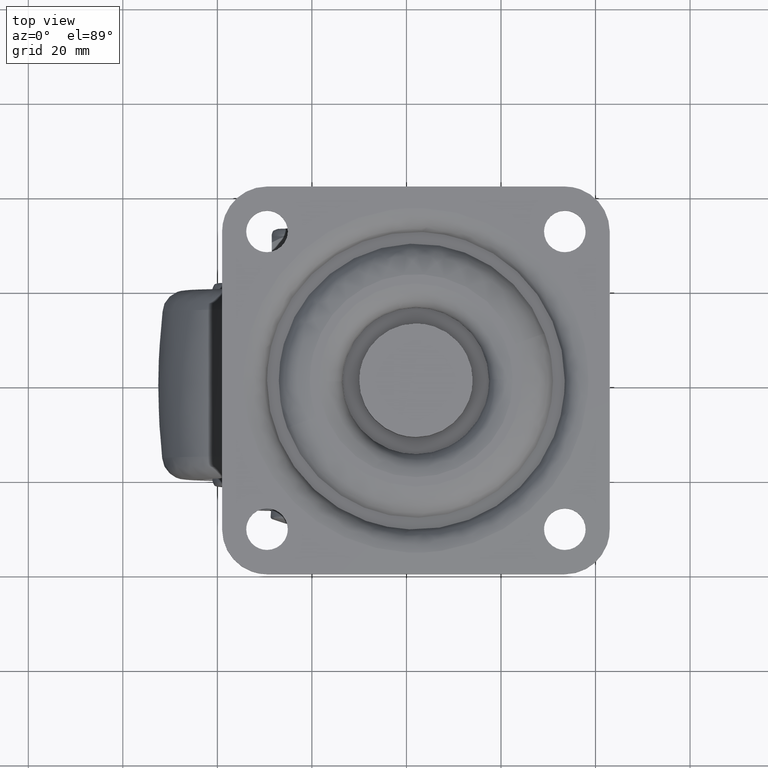
[diagram: clean part render]
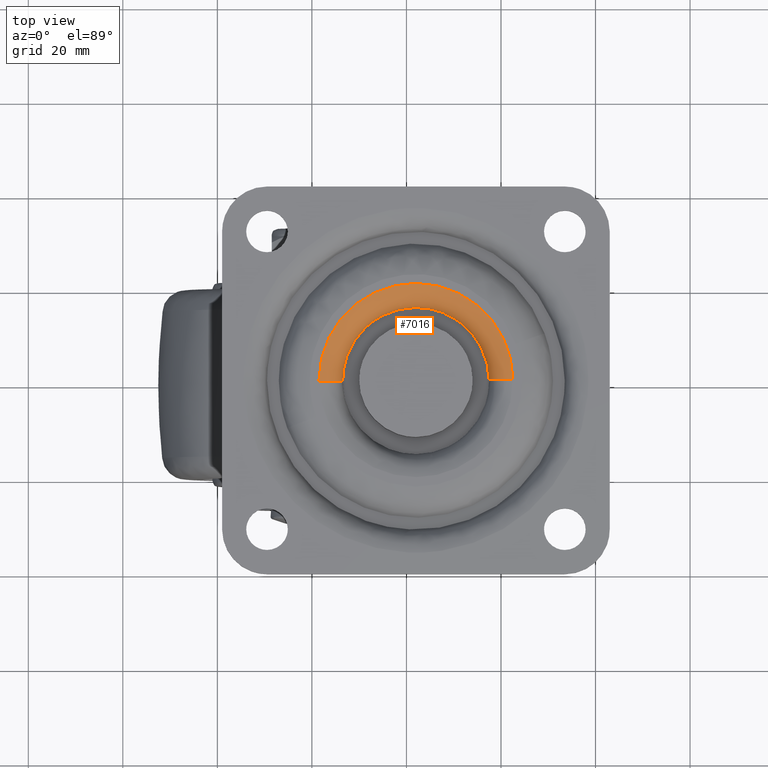
[diagram: same view with one face highlighted and labeled with its STEP entity id]
A machine part, top view. The second image highlights one B-rep face of the part: STEP entity #7016.
In plain terms, the highlighted face is a freeform B-spline surface patch.
Its self-contained STEP definition (entity closure, byte-faithful):
#6725=CARTESIAN_POINT('',(1.501618595742468,-0.257603818025101,57.500000000000000));
#6726=VERTEX_POINT('',#6725);
#6727=CARTESIAN_POINT('',(1.500000000000249,2.842171E-014,57.500000000000000));
#6728=VERTEX_POINT('',#6727);
#6729=CARTESIAN_POINT('',(1.501618595742468,-0.257603818025101,57.500000000000000));
#6730=CARTESIAN_POINT('',(1.500000000000249,2.842171E-014,57.500000000000000));
#6731=QUASI_UNIFORM_CURVE('',1,(#6729,#6730),.UNSPECIFIED.,.F.,.U.);
#6732=EDGE_CURVE('',#6726,#6728,#6731,.T.);
#6734=CARTESIAN_POINT('',(21.871262428262519,20.499595767657890,57.500000000000000));
#6735=VERTEX_POINT('',#6734);
#6736=CARTESIAN_POINT('',(1.500000000000249,2.842171E-014,57.500000000000000));
#6737=CARTESIAN_POINT('',(1.499906199968379,1.169317138835591,57.499999999999957));
#6738=CARTESIAN_POINT('',(1.657659435351596,3.006768346817889,57.499999999999972));
#6739=CARTESIAN_POINT('',(2.296386754034684,5.863018410265247,57.500000000000021));
#6740=CARTESIAN_POINT('',(3.097181874679892,8.068115368746158,57.500000000000227));
#6741=CARTESIAN_POINT('',(4.329091803113908,10.489770371914160,57.500000000000007));
#6742=CARTESIAN_POINT('',(6.006084404896178,12.996063976494590,57.499999999999673));
#6743=CARTESIAN_POINT('',(8.481965444040405,15.564906780596440,57.500000000000938));
#6744=CARTESIAN_POINT('',(11.277676091226120,17.562602187810480,57.499999999998913));
#6745=CARTESIAN_POINT('',(13.702401522638979,18.796491569058659,57.500000000001350));
#6746=CARTESIAN_POINT('',(16.211804023177141,19.725744591827951,57.499999999999041));
#6747=CARTESIAN_POINT('',(18.865428785095109,20.336664881110931,57.500000000000377));
#6748=CARTESIAN_POINT('',(20.910776011705231,20.493604045383790,57.499999999999943));
#6749=CARTESIAN_POINT('',(21.871262428262519,20.499595767657890,57.500000000000000));
#6750=B_SPLINE_CURVE_WITH_KNOTS('',3,(#6736,#6737,#6738,#6739,#6740,#6741,#6742,#6743,#6744,#6745,#6746,#6747,#6748,#6749),.UNSPECIFIED.,.F.,.U.,(4,1,1,1,1,1,1,1,1,1,1,4),(0.000000063308509,3.507935912666781,5.512477670334114,8.769865574547712,10.523848324996340,13.655957931679310,17.790274416381699,21.172934712702030,23.929192826482002,25.933744287155839,29.191117906937158,32.072636192873581),.UNSPECIFIED.);
#6751=EDGE_CURVE('',#6728,#6735,#6750,.T.);
#6753=CARTESIAN_POINT('',(42.498381404258033,0.257603818025160,57.500000000000000));
#6754=VERTEX_POINT('',#6753);
#6755=CARTESIAN_POINT('',(21.871262428262519,20.499595767657890,57.500000000000000));
#6756=CARTESIAN_POINT('',(23.040543013925848,20.507002988002011,57.500000000000057));
#6757=CARTESIAN_POINT('',(25.547506399914329,20.307818488317061,57.500000000000171));
#6758=CARTESIAN_POINT('',(28.789274919460400,19.436369568143888,57.499999999999559));
#6759=CARTESIAN_POINT('',(31.461618870519420,18.237923325660901,57.500000000000632));
#6760=CARTESIAN_POINT('',(33.437436373272988,17.059915022666459,57.499999999999041));
#6761=CARTESIAN_POINT('',(35.376200521227759,15.602604109718611,57.500000000001620));
#6762=CARTESIAN_POINT('',(37.094601406810142,13.946936059768721,57.499999999996781));
#6763=CARTESIAN_POINT('',(38.807461316412940,11.836411187080181,57.500000000001727));
#6764=CARTESIAN_POINT('',(40.172352756203921,9.627296061344079,57.499999999998977));
#6765=CARTESIAN_POINT('',(41.186545407938240,7.330920325849781,57.500000000001137));
#6766=CARTESIAN_POINT('',(41.911145374953229,5.060866157246061,57.500000000000192));
#6767=CARTESIAN_POINT('',(42.367397362431831,2.761801861608740,57.499999999996653));
#6768=CARTESIAN_POINT('',(42.488425719077100,1.050990495316557,57.500000000004881));
#6769=CARTESIAN_POINT('',(42.498381404258033,0.257603818025160,57.500000000000000));
#6770=B_SPLINE_CURVE_WITH_KNOTS('',3,(#6755,#6756,#6757,#6758,#6759,#6760,#6761,#6762,#6763,#6764,#6765,#6766,#6767,#6768,#6769),.UNSPECIFIED.,.F.,.U.,(4,1,1,1,1,1,1,1,1,1,1,1,4),(0.000000063213665,3.507921282035710,7.516990620774735,10.022658065507491,12.277779489180769,14.407605277273470,17.289045615502801,19.418871196942021,22.550969760226430,25.056644035658369,26.935907262649138,29.692150937662539,32.072502428154337),.UNSPECIFIED.);
#6771=EDGE_CURVE('',#6735,#6754,#6770,.T.);
#6849=CARTESIAN_POINT('',(37.498776185159002,0.194773618223117,52.500000000142919));
#6850=VERTEX_POINT('',#6849);
#6881=CARTESIAN_POINT('',(6.501223814841493,-0.194773618223061,52.500000000142933));
#6882=VERTEX_POINT('',#6881);
#6899=CARTESIAN_POINT('',(6.501223814841493,-0.194773618223061,52.500000000142933));
#6900=CARTESIAN_POINT('',(6.501265923053433,-0.194773089062879,52.868145844209280));
#6901=CARTESIAN_POINT('',(6.412814792539733,-0.195884657297674,53.665830183418080));
#6902=CARTESIAN_POINT('',(6.059519541336999,-0.200324530122700,54.634547269890533));
#6903=CARTESIAN_POINT('',(5.537785126748531,-0.206881183327212,55.492919124443617));
#6904=CARTESIAN_POINT('',(4.861556549933101,-0.215379369634196,56.267459378072303));
#6905=CARTESIAN_POINT('',(3.899780403483444,-0.227466041429244,56.944908503942258));
#6906=CARTESIAN_POINT('',(2.728638191044784,-0.242183823300444,57.396558599245893));
#6907=CARTESIAN_POINT('',(1.931107765258795,-0.252206413817569,57.500127143726907));
#6908=CARTESIAN_POINT('',(1.501618595742468,-0.257603818025101,57.500000000000000));
#6909=B_SPLINE_CURVE_WITH_KNOTS('',3,(#6899,#6900,#6901,#6902,#6903,#6904,#6905,#6906,#6907,#6908),.UNSPECIFIED.,.F.,.U.,(4,1,1,1,1,1,1,4),(0.000000126471452,1.104453403189432,2.393029631931603,3.067990372922898,4.111088817004185,5.461003267471872,6.565494966442980,7.854030913224137),.UNSPECIFIED.);
#6910=EDGE_CURVE('',#6882,#6726,#6909,.T.);
#6915=CARTESIAN_POINT('',(37.498776185159002,0.194773618223117,52.500000000142919));
#6916=CARTESIAN_POINT('',(37.498768708863260,0.194773524279990,52.786337472059500));
#6917=CARTESIAN_POINT('',(37.558613202396927,0.195525591983557,53.481751929905833));
#6918=CARTESIAN_POINT('',(37.905368973616334,0.199883282960467,54.625600862022829));
#6919=CARTESIAN_POINT('',(38.513710939957541,0.207528336057714,55.586303626651279));
#6920=CARTESIAN_POINT('',(39.248511668421308,0.216762600477136,56.329992107927460));
#6921=CARTESIAN_POINT('',(39.964643297843310,0.225762249719168,56.847704746379712));
#6922=CARTESIAN_POINT('',(41.066980579874119,0.239615357819055,57.352724992933922));
#6923=CARTESIAN_POINT('',(41.946138467508057,0.250663763276520,57.500368698919843));
#6924=CARTESIAN_POINT('',(42.498381404258033,0.257603818025160,57.500000000000000));
#6925=B_SPLINE_CURVE_WITH_KNOTS('',3,(#6915,#6916,#6917,#6918,#6919,#6920,#6921,#6922,#6923,#6924),.UNSPECIFIED.,.F.,.U.,(4,1,1,1,1,1,1,4),(0.000000126505962,0.859030739253578,2.086229460678656,3.558867399312371,4.233784437606239,5.215551463672838,6.197327634911657,7.854030913223915),.UNSPECIFIED.);
#6926=EDGE_CURVE('',#6850,#6754,#6925,.T.);
#6931=CARTESIAN_POINT('',(6.494571084786675,-0.628559266326631,52.152314454433771));
#6932=CARTESIAN_POINT('',(6.491862209576251,-0.413005173376916,52.152314454433771));
#6933=CARTESIAN_POINT('',(6.294195890777817,15.315952694940872,52.152314454433764));
#6934=CARTESIAN_POINT('',(21.805074292859448,15.510878402081666,52.152314454433771));
#6935=CARTESIAN_POINT('',(37.315952694941103,15.705804109222470,52.152314454433764));
#6936=CARTESIAN_POINT('',(37.513619013737269,-0.023153758915227,52.152314454433778));
#6937=CARTESIAN_POINT('',(37.516327888945476,-0.238707851689005,52.152314454433771));
#6938=CARTESIAN_POINT('',(6.894187961827945,-0.612359592495077,57.887685870088774));
#6939=CARTESIAN_POINT('',(6.891548901664741,-0.402360912035339,57.887685870088781));
#6940=CARTESIAN_POINT('',(6.698976978993391,14.921219133016711,57.887685870088767));
#6941=CARTESIAN_POINT('',(21.810098056005160,15.111121077011799,57.887685870088788));
#6942=CARTESIAN_POINT('',(36.921219133016926,15.301023021006886,57.887685870088767));
#6943=CARTESIAN_POINT('',(37.113791055686065,-0.022557023869710,57.887685870088774));
#6944=CARTESIAN_POINT('',(37.116430115847123,-0.232555704158045,57.887685870088774));
#6945=CARTESIAN_POINT('',(1.161284265671278,-0.844760112395690,57.487896817658800));
#6946=CARTESIAN_POINT('',(1.157643638844474,-0.555063484658877,57.487896817658800));
#6947=CARTESIAN_POINT('',(0.891987509612845,20.584066790770628,57.487896817658815));
#6948=CARTESIAN_POINT('',(21.738027150191840,20.846039640579033,57.487896817658807));
#6949=CARTESIAN_POINT('',(42.584066790770855,21.108012490387431,57.487896817658815));
#6950=CARTESIAN_POINT('',(42.849722919999451,-0.031117784800028,57.487896817658807));
#6951=CARTESIAN_POINT('',(42.853363546823282,-0.320814412300387,57.487896817658800));
#6959=(BOUNDED_SURFACE()B_SPLINE_SURFACE(2,2,((#6931,#6938,#6945),(#6932,#6939,#6946),(#6933,#6940,#6947),(#6934,#6941,#6948),(#6935,#6942,#6949),(#6936,#6943,#6950),(#6937,#6944,#6951)),.UNSPECIFIED.,.F.,.F.,.U.)B_SPLINE_SURFACE_WITH_KNOTS((3,1,2,1,3),(3,3),(0.0,0.690831532954838,35.232408154218362,69.773984775481878,70.464816307862876),(0.0,9.113649966391414),.UNSPECIFIED.)GEOMETRIC_REPRESENTATION_ITEM()RATIONAL_B_SPLINE_SURFACE(((0.921146729413126,0.604479481457801,0.921146741245760),(0.915813262252061,0.600979527149819,0.915813274016184),(0.643806437242182,0.422481857576905,0.643806445512228),(0.910479795090997,0.597479572841838,0.910479806786608),(0.643806437242182,0.422481857576905,0.643806445512228),(0.915813262247631,0.600979527146912,0.915813274011753),(0.921146729404265,0.604479481451986,0.921146741236899)))REPRESENTATION_ITEM('')SURFACE());
#6960=CARTESIAN_POINT('',(11.330504062690681,11.243302737351479,52.500000000026183));
#6961=VERTEX_POINT('',#6960);
#6962=CARTESIAN_POINT('',(6.500000000000249,2.842171E-014,52.500000000000000));
#6963=VERTEX_POINT('',#6962);
#6964=CARTESIAN_POINT('',(11.330504062690681,11.243302737351479,52.500000000026183));
#6965=CARTESIAN_POINT('',(10.712626257001670,10.657054631180230,52.500000000023057));
#6966=CARTESIAN_POINT('',(9.771042704417774,9.602928423805246,52.500000000018552));
#6967=CARTESIAN_POINT('',(8.634629005815720,7.915986387201096,52.500000000012427));
#6968=CARTESIAN_POINT('',(7.636773547122264,5.993492234766944,52.500000000007397));
#6969=CARTESIAN_POINT('',(6.748011148492680,3.341317016973517,52.500000000002309));
#6970=CARTESIAN_POINT('',(6.499738666456527,1.179351029885947,52.500000000000313));
#6971=CARTESIAN_POINT('',(6.500000000000249,2.842171E-014,52.500000000000000));
#6972=B_SPLINE_CURVE_WITH_KNOTS('',3,(#6964,#6965,#6966,#6967,#6968,#6969,#6970,#6971),.UNSPECIFIED.,.F.,.U.,(4,1,1,1,1,4),(0.000000019416740,2.555206537399148,4.225923888473529,6.093198310215688,9.041500712213813,12.579481635364839),.UNSPECIFIED.);
#6973=EDGE_CURVE('',#6961,#6963,#6972,.T.);
#6974=ORIENTED_EDGE('',*,*,#6973,.F.);
#6975=CARTESIAN_POINT('',(21.902690972914030,15.499694543869190,52.500000000071459));
#6976=VERTEX_POINT('',#6975);
#6977=CARTESIAN_POINT('',(21.902690972914030,15.499694543869190,52.500000000071459));
#6978=CARTESIAN_POINT('',(20.717386191861038,15.492536187671940,52.500000000066450));
#6979=CARTESIAN_POINT('',(19.016822569049982,15.285334800945851,52.500000000059117));
#6980=CARTESIAN_POINT('',(16.651880927504561,14.590665642330610,52.500000000049027));
#6981=CARTESIAN_POINT('',(14.946440448820191,13.851017816585120,52.500000000041751));
#6982=CARTESIAN_POINT('',(13.065103710816111,12.726776029107530,52.500000000033410));
#6983=CARTESIAN_POINT('',(11.947741862340830,11.829126477436800,52.500000000029260));
#6984=CARTESIAN_POINT('',(11.330504062690681,11.243302737351479,52.500000000026183));
#6985=B_SPLINE_CURVE_WITH_KNOTS('',3,(#6977,#6978,#6979,#6980,#6981,#6982,#6983,#6984),.UNSPECIFIED.,.F.,.U.,(4,1,1,1,1,4),(0.000000016097363,3.555886727617448,5.105895935041705,7.385293085315533,9.117649504820500,11.670589660466330),.UNSPECIFIED.);
#6986=EDGE_CURVE('',#6976,#6961,#6985,.T.);
#6987=ORIENTED_EDGE('',*,*,#6986,.F.);
#6988=CARTESIAN_POINT('',(37.498776185159002,0.194773618223117,52.500000000142919));
#6989=CARTESIAN_POINT('',(37.487361545157043,1.110390045646792,52.500000000142911));
#6990=CARTESIAN_POINT('',(37.336714436762342,2.592619178042881,52.500000000142123));
#6991=CARTESIAN_POINT('',(36.777249056944150,4.832300976548175,52.500000000139948));
#6992=CARTESIAN_POINT('',(36.026730680200266,6.715457310421593,52.500000000135920));
#6993=CARTESIAN_POINT('',(34.863959574974118,8.747226900879056,52.500000000131301));
#6994=CARTESIAN_POINT('',(33.531698082685040,10.441023642045600,52.500000000124921));
#6995=CARTESIAN_POINT('',(31.831086125651630,12.049742969907079,52.500000000117112));
#6996=CARTESIAN_POINT('',(30.048600679703341,13.314453486861741,52.500000000108948));
#6997=CARTESIAN_POINT('',(27.816127347356041,14.441082831391070,52.500000000098993));
#6998=CARTESIAN_POINT('',(25.124678536044058,15.289637219209929,52.500000000085528));
#6999=CARTESIAN_POINT('',(23.039391368222532,15.507023608101781,52.500000000077371));
#7000=CARTESIAN_POINT('',(21.902690972914030,15.499694543869190,52.500000000071459));
#7001=B_SPLINE_CURVE_WITH_KNOTS('',3,(#6988,#6989,#6990,#6991,#6992,#6993,#6994,#6995,#6996,#6997,#6998,#6999,#7000),.UNSPECIFIED.,.F.,.U.,(4,1,1,1,1,1,1,1,1,1,4),(0.000000066868775,2.747047134509487,4.452128457051259,6.915019956317654,8.809543300931763,11.461881745406179,13.356361820477391,15.819272414639221,17.997980657837331,20.839787334298482,24.249911724129220),.UNSPECIFIED.);
#7002=EDGE_CURVE('',#6850,#6976,#7001,.T.);
#7003=ORIENTED_EDGE('',*,*,#7002,.F.);
#7004=ORIENTED_EDGE('',*,*,#6926,.T.);
#7005=ORIENTED_EDGE('',*,*,#6771,.F.);
#7006=ORIENTED_EDGE('',*,*,#6751,.F.);
#7007=ORIENTED_EDGE('',*,*,#6732,.F.);
#7008=ORIENTED_EDGE('',*,*,#6910,.F.);
#7009=CARTESIAN_POINT('',(6.500000000000249,2.842171E-014,52.500000000000000));
#7010=CARTESIAN_POINT('',(6.501223814841493,-0.194773618223061,52.500000000142933));
#7011=QUASI_UNIFORM_CURVE('',1,(#7009,#7010),.UNSPECIFIED.,.F.,.U.);
#7012=EDGE_CURVE('',#6963,#6882,#7011,.T.);
#7013=ORIENTED_EDGE('',*,*,#7012,.F.);
#7014=EDGE_LOOP('',(#6974,#6987,#7003,#7004,#7005,#7006,#7007,#7008,#7013));
#7015=FACE_OUTER_BOUND('',#7014,.T.);
#7016=ADVANCED_FACE('',(#7015),#6959,.T.);